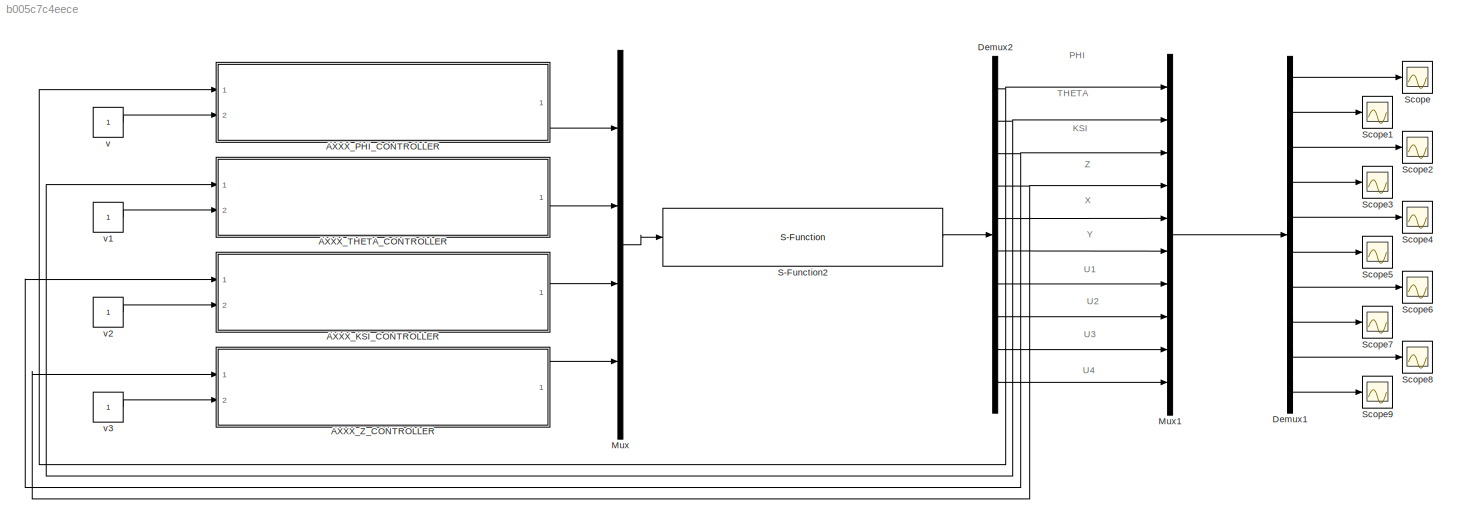
MODEL slx_b005c7c4eece
KIND model
CONFIG AbsTol = auto
CONFIG FixedStep = 1e-4
CONFIG MaxStep = auto
CONFIG MinStep = auto
CONFIG RelTol = 1e-4
CONFIG SampleTimeConstraint = Unconstrained
CONFIG Solver = ode45
CONFIG SolverMode = Auto
CONFIG SolverName = ode45
CONFIG StartTime = 0.0
CONFIG StopTime = 10
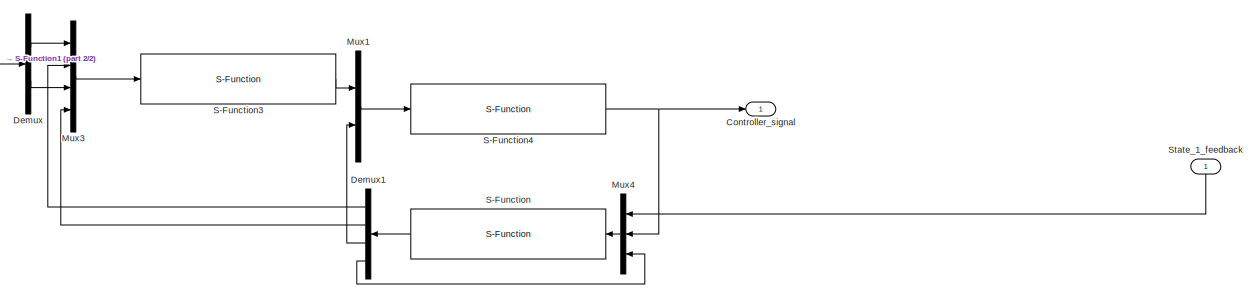
[diagram: AXXX_KSI_CONTROLLER - part 1/2, most of the canvas]
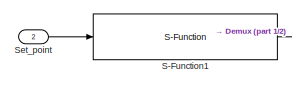
[diagram: AXXX_KSI_CONTROLLER - part 2/2, top left region]
BLOCK [SubSystem] AXXX_KSI_CONTROLLER
  Ports = [2, 1]
  RequestExecContextInheritance = off
BLOCK [Outport] AXXX_KSI_CONTROLLER/Controller_signal
  IconDisplay = Port number
BLOCK [Demux] AXXX_KSI_CONTROLLER/Demux
  DisplayOption = bar
  Outputs = 2
  Ports = [1, 2]
BLOCK [Demux] AXXX_KSI_CONTROLLER/Demux1
  DisplayOption = bar
  Ports = [1, 4]
BLOCK [Mux] AXXX_KSI_CONTROLLER/Mux1
  DisplayOption = bar
  Inputs = 2
  Ports = [2, 1]
BLOCK [Mux] AXXX_KSI_CONTROLLER/Mux3
  DisplayOption = bar
  Ports = [4, 1]
BLOCK [Mux] AXXX_KSI_CONTROLLER/Mux4
  DisplayOption = bar
  Inputs = 3
  Ports = [3, 1]
BLOCK [S-Function] AXXX_KSI_CONTROLLER/S-Function
  FunctionName = eso_q
  Ports = [1, 1]
BLOCK [S-Function] AXXX_KSI_CONTROLLER/S-Function1
  FunctionName = tracking_differentiator_q
  Ports = [1, 1]
BLOCK [S-Function] AXXX_KSI_CONTROLLER/S-Function3
  FunctionName = nlsef_q
  Ports = [1, 1]
BLOCK [S-Function] AXXX_KSI_CONTROLLER/S-Function4
  FunctionName = adrc_q
  Ports = [1, 1]
BLOCK [Inport] AXXX_KSI_CONTROLLER/Set_point
  IconDisplay = Port number
  Port = 2
BLOCK [Inport] AXXX_KSI_CONTROLLER/State_1_feedback
  IconDisplay = Port number
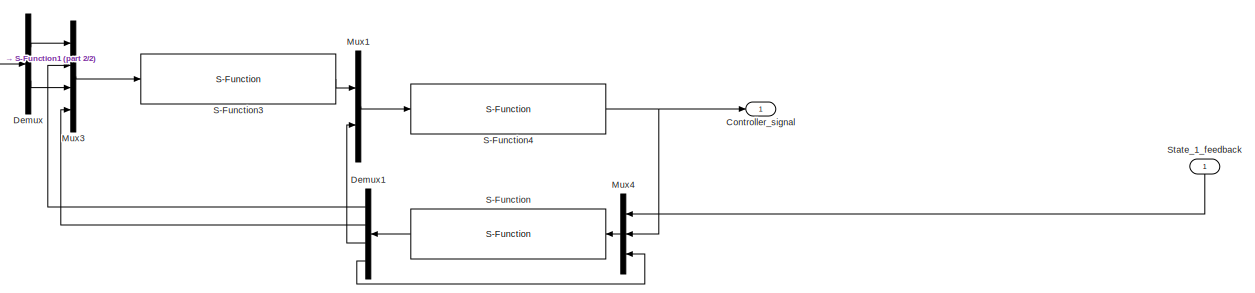
[diagram: AXXX_PHI_CONTROLLER - part 1/2, most of the canvas]
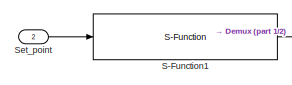
[diagram: AXXX_PHI_CONTROLLER - part 2/2, top left region]
BLOCK [SubSystem] AXXX_PHI_CONTROLLER
  Ports = [2, 1]
  RequestExecContextInheritance = off
BLOCK [Outport] AXXX_PHI_CONTROLLER/Controller_signal
  IconDisplay = Port number
BLOCK [Demux] AXXX_PHI_CONTROLLER/Demux
  DisplayOption = bar
  Outputs = 2
  Ports = [1, 2]
BLOCK [Demux] AXXX_PHI_CONTROLLER/Demux1
  DisplayOption = bar
  Ports = [1, 4]
BLOCK [Mux] AXXX_PHI_CONTROLLER/Mux1
  DisplayOption = bar
  Inputs = 2
  Ports = [2, 1]
BLOCK [Mux] AXXX_PHI_CONTROLLER/Mux3
  DisplayOption = bar
  Ports = [4, 1]
BLOCK [Mux] AXXX_PHI_CONTROLLER/Mux4
  DisplayOption = bar
  Inputs = 3
  Ports = [3, 1]
BLOCK [S-Function] AXXX_PHI_CONTROLLER/S-Function
  FunctionName = eso_q
  Ports = [1, 1]
BLOCK [S-Function] AXXX_PHI_CONTROLLER/S-Function1
  FunctionName = tracking_differentiator_q
  Ports = [1, 1]
BLOCK [S-Function] AXXX_PHI_CONTROLLER/S-Function3
  FunctionName = nlsef_q
  Ports = [1, 1]
BLOCK [S-Function] AXXX_PHI_CONTROLLER/S-Function4
  FunctionName = adrc_q
  Ports = [1, 1]
BLOCK [Inport] AXXX_PHI_CONTROLLER/Set_point
  IconDisplay = Port number
  Port = 2
BLOCK [Inport] AXXX_PHI_CONTROLLER/State_1_feedback
  IconDisplay = Port number
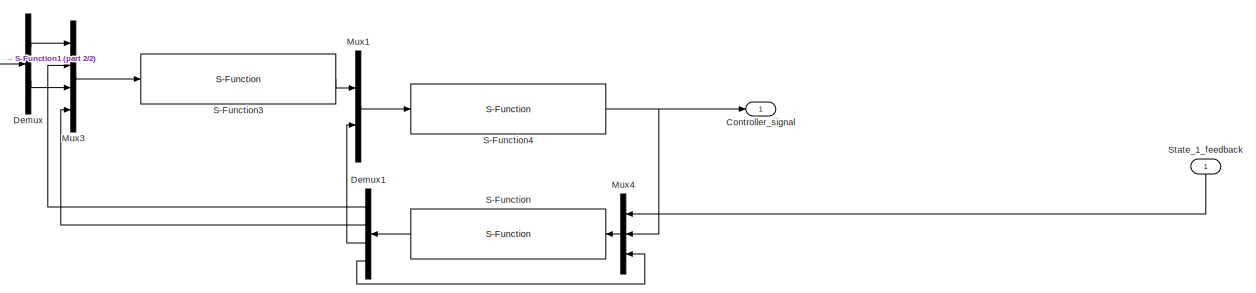
[diagram: AXXX_THETA_CONTROLLER - part 1/2, most of the canvas]
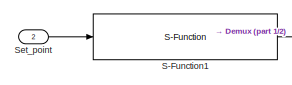
[diagram: AXXX_THETA_CONTROLLER - part 2/2, top left region]
BLOCK [SubSystem] AXXX_THETA_CONTROLLER
  Ports = [2, 1]
  RequestExecContextInheritance = off
BLOCK [Outport] AXXX_THETA_CONTROLLER/Controller_signal
  IconDisplay = Port number
BLOCK [Demux] AXXX_THETA_CONTROLLER/Demux
  DisplayOption = bar
  Outputs = 2
  Ports = [1, 2]
BLOCK [Demux] AXXX_THETA_CONTROLLER/Demux1
  DisplayOption = bar
  Ports = [1, 4]
BLOCK [Mux] AXXX_THETA_CONTROLLER/Mux1
  DisplayOption = bar
  Inputs = 2
  Ports = [2, 1]
BLOCK [Mux] AXXX_THETA_CONTROLLER/Mux3
  DisplayOption = bar
  Ports = [4, 1]
BLOCK [Mux] AXXX_THETA_CONTROLLER/Mux4
  DisplayOption = bar
  Inputs = 3
  Ports = [3, 1]
BLOCK [S-Function] AXXX_THETA_CONTROLLER/S-Function
  FunctionName = eso_q
  Ports = [1, 1]
BLOCK [S-Function] AXXX_THETA_CONTROLLER/S-Function1
  FunctionName = tracking_differentiator_q
  Ports = [1, 1]
BLOCK [S-Function] AXXX_THETA_CONTROLLER/S-Function3
  FunctionName = nlsef_q
  Ports = [1, 1]
BLOCK [S-Function] AXXX_THETA_CONTROLLER/S-Function4
  FunctionName = adrc_q
  Ports = [1, 1]
BLOCK [Inport] AXXX_THETA_CONTROLLER/Set_point
  IconDisplay = Port number
  Port = 2
BLOCK [Inport] AXXX_THETA_CONTROLLER/State_1_feedback
  IconDisplay = Port number
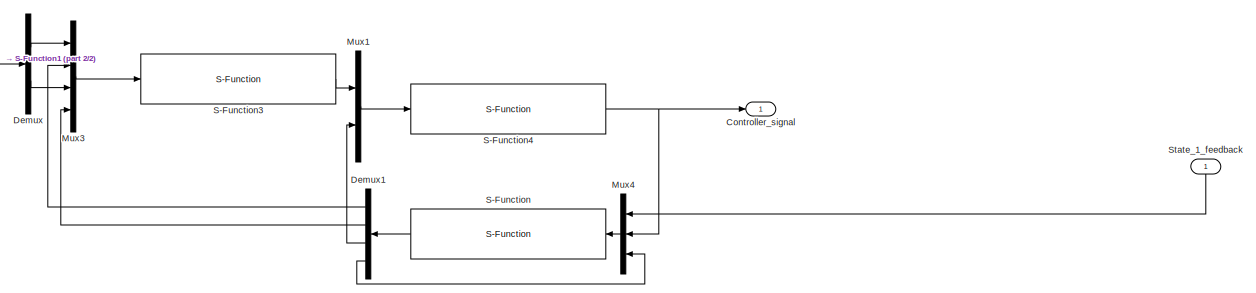
[diagram: AXXX_Z_CONTROLLER - part 1/2, most of the canvas]
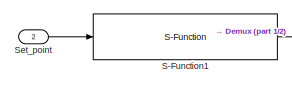
[diagram: AXXX_Z_CONTROLLER - part 2/2, top left region]
BLOCK [SubSystem] AXXX_Z_CONTROLLER
  Ports = [2, 1]
  RequestExecContextInheritance = off
BLOCK [Outport] AXXX_Z_CONTROLLER/Controller_signal
  IconDisplay = Port number
BLOCK [Demux] AXXX_Z_CONTROLLER/Demux
  DisplayOption = bar
  Outputs = 2
  Ports = [1, 2]
BLOCK [Demux] AXXX_Z_CONTROLLER/Demux1
  DisplayOption = bar
  Ports = [1, 4]
BLOCK [Mux] AXXX_Z_CONTROLLER/Mux1
  DisplayOption = bar
  Inputs = 2
  Ports = [2, 1]
BLOCK [Mux] AXXX_Z_CONTROLLER/Mux3
  DisplayOption = bar
  Ports = [4, 1]
BLOCK [Mux] AXXX_Z_CONTROLLER/Mux4
  DisplayOption = bar
  Inputs = 3
  Ports = [3, 1]
BLOCK [S-Function] AXXX_Z_CONTROLLER/S-Function
  FunctionName = eso_q
  Ports = [1, 1]
BLOCK [S-Function] AXXX_Z_CONTROLLER/S-Function1
  FunctionName = tracking_differentiator_q
  Ports = [1, 1]
BLOCK [S-Function] AXXX_Z_CONTROLLER/S-Function3
  FunctionName = nlsef_q
  Ports = [1, 1]
BLOCK [S-Function] AXXX_Z_CONTROLLER/S-Function4
  FunctionName = adrc_q
  Ports = [1, 1]
BLOCK [Inport] AXXX_Z_CONTROLLER/Set_point
  IconDisplay = Port number
  Port = 2
BLOCK [Inport] AXXX_Z_CONTROLLER/State_1_feedback
  IconDisplay = Port number
BLOCK [Demux] Demux1
  DisplayOption = bar
  Outputs = 10
  Ports = [1, 10]
BLOCK [Demux] Demux2
  DisplayOption = bar
  Outputs = 10
  Ports = [1, 10]
BLOCK [Mux] Mux
  DisplayOption = bar
  Ports = [4, 1]
BLOCK [Mux] Mux1
  DisplayOption = bar
  Inputs = 10
  Ports = [10, 1]
BLOCK [S-Function] S-Function2
  FunctionName = quadrotor_adrc_controller_q
  Ports = [1, 1]
BLOCK [Scope] Scope
  Floating = off
  NumInputPorts = 1
  Ports = [1]
BLOCK [Scope] Scope1
  Floating = off
  NumInputPorts = 1
  Ports = [1]
  SaveName = ScopeData1
BLOCK [Scope] Scope2
  Floating = off
  NumInputPorts = 1
  Ports = [1]
  SaveName = ScopeData2
BLOCK [Scope] Scope3
  Floating = off
  NumInputPorts = 1
  Ports = [1]
  SaveName = ScopeData3
BLOCK [Scope] Scope4
  Floating = off
  NumInputPorts = 1
  Ports = [1]
  SaveName = ScopeData4
BLOCK [Scope] Scope5
  Floating = off
  NumInputPorts = 1
  Ports = [1]
  SaveName = ScopeData5
BLOCK [Scope] Scope6
  Floating = off
  NumInputPorts = 1
  Ports = [1]
  SaveName = ScopeData6
BLOCK [Scope] Scope7
  Floating = off
  NumInputPorts = 1
  Ports = [1]
  SaveName = ScopeData7
BLOCK [Scope] Scope8
  Floating = off
  NumInputPorts = 1
  Ports = [1]
  SaveName = ScopeData8
BLOCK [Scope] Scope9
  Floating = off
  NumInputPorts = 1
  Ports = [1]
  SaveName = ScopeData9
BLOCK [Constant] v
BLOCK [Constant] v1
BLOCK [Constant] v2
BLOCK [Constant] v3
ANNOTATION (root): KSI
ANNOTATION (root): PHI
ANNOTATION (root): THETA
ANNOTATION (root): U1
ANNOTATION (root): U2
ANNOTATION (root): U3
ANNOTATION (root): U4
ANNOTATION (root): X
ANNOTATION (root): Y
ANNOTATION (root): Z
LINE AXXX_KSI_CONTROLLER/Demux1:1 -> AXXX_KSI_CONTROLLER/Mux3:2
LINE AXXX_KSI_CONTROLLER/Demux1:2 -> AXXX_KSI_CONTROLLER/Mux3:4
LINE AXXX_KSI_CONTROLLER/Demux1:3 -> AXXX_KSI_CONTROLLER/Mux1:2
LINE AXXX_KSI_CONTROLLER/Demux1:4 -> AXXX_KSI_CONTROLLER/Mux4:3
LINE AXXX_KSI_CONTROLLER/Demux:1 -> AXXX_KSI_CONTROLLER/Mux3:1
LINE AXXX_KSI_CONTROLLER/Demux:2 -> AXXX_KSI_CONTROLLER/Mux3:3
LINE AXXX_KSI_CONTROLLER/Mux1:1 -> AXXX_KSI_CONTROLLER/S-Function4:1
LINE AXXX_KSI_CONTROLLER/Mux3:1 -> AXXX_KSI_CONTROLLER/S-Function3:1
LINE AXXX_KSI_CONTROLLER/Mux4:1 -> AXXX_KSI_CONTROLLER/S-Function:1
LINE AXXX_KSI_CONTROLLER/S-Function1:1 -> AXXX_KSI_CONTROLLER/Demux:1
LINE AXXX_KSI_CONTROLLER/S-Function3:1 -> AXXX_KSI_CONTROLLER/Mux1:1
NET AXXX_KSI_CONTROLLER/S-Function4:1 -> AXXX_KSI_CONTROLLER/Controller_signal:1, AXXX_KSI_CONTROLLER/Mux4:2
LINE AXXX_KSI_CONTROLLER/S-Function:1 -> AXXX_KSI_CONTROLLER/Demux1:1
LINE AXXX_KSI_CONTROLLER/Set_point:1 -> AXXX_KSI_CONTROLLER/S-Function1:1
LINE AXXX_KSI_CONTROLLER/State_1_feedback:1 -> AXXX_KSI_CONTROLLER/Mux4:1
LINE AXXX_KSI_CONTROLLER:1 -> Mux:3
LINE AXXX_PHI_CONTROLLER/Demux1:1 -> AXXX_PHI_CONTROLLER/Mux3:2
LINE AXXX_PHI_CONTROLLER/Demux1:2 -> AXXX_PHI_CONTROLLER/Mux3:4
LINE AXXX_PHI_CONTROLLER/Demux1:3 -> AXXX_PHI_CONTROLLER/Mux1:2
LINE AXXX_PHI_CONTROLLER/Demux1:4 -> AXXX_PHI_CONTROLLER/Mux4:3
LINE AXXX_PHI_CONTROLLER/Demux:1 -> AXXX_PHI_CONTROLLER/Mux3:1
LINE AXXX_PHI_CONTROLLER/Demux:2 -> AXXX_PHI_CONTROLLER/Mux3:3
LINE AXXX_PHI_CONTROLLER/Mux1:1 -> AXXX_PHI_CONTROLLER/S-Function4:1
LINE AXXX_PHI_CONTROLLER/Mux3:1 -> AXXX_PHI_CONTROLLER/S-Function3:1
LINE AXXX_PHI_CONTROLLER/Mux4:1 -> AXXX_PHI_CONTROLLER/S-Function:1
LINE AXXX_PHI_CONTROLLER/S-Function1:1 -> AXXX_PHI_CONTROLLER/Demux:1
LINE AXXX_PHI_CONTROLLER/S-Function3:1 -> AXXX_PHI_CONTROLLER/Mux1:1
NET AXXX_PHI_CONTROLLER/S-Function4:1 -> AXXX_PHI_CONTROLLER/Controller_signal:1, AXXX_PHI_CONTROLLER/Mux4:2
LINE AXXX_PHI_CONTROLLER/S-Function:1 -> AXXX_PHI_CONTROLLER/Demux1:1
LINE AXXX_PHI_CONTROLLER/Set_point:1 -> AXXX_PHI_CONTROLLER/S-Function1:1
LINE AXXX_PHI_CONTROLLER/State_1_feedback:1 -> AXXX_PHI_CONTROLLER/Mux4:1
LINE AXXX_PHI_CONTROLLER:1 -> Mux:1
LINE AXXX_THETA_CONTROLLER/Demux1:1 -> AXXX_THETA_CONTROLLER/Mux3:2
LINE AXXX_THETA_CONTROLLER/Demux1:2 -> AXXX_THETA_CONTROLLER/Mux3:4
LINE AXXX_THETA_CONTROLLER/Demux1:3 -> AXXX_THETA_CONTROLLER/Mux1:2
LINE AXXX_THETA_CONTROLLER/Demux1:4 -> AXXX_THETA_CONTROLLER/Mux4:3
LINE AXXX_THETA_CONTROLLER/Demux:1 -> AXXX_THETA_CONTROLLER/Mux3:1
LINE AXXX_THETA_CONTROLLER/Demux:2 -> AXXX_THETA_CONTROLLER/Mux3:3
LINE AXXX_THETA_CONTROLLER/Mux1:1 -> AXXX_THETA_CONTROLLER/S-Function4:1
LINE AXXX_THETA_CONTROLLER/Mux3:1 -> AXXX_THETA_CONTROLLER/S-Function3:1
LINE AXXX_THETA_CONTROLLER/Mux4:1 -> AXXX_THETA_CONTROLLER/S-Function:1
LINE AXXX_THETA_CONTROLLER/S-Function1:1 -> AXXX_THETA_CONTROLLER/Demux:1
LINE AXXX_THETA_CONTROLLER/S-Function3:1 -> AXXX_THETA_CONTROLLER/Mux1:1
NET AXXX_THETA_CONTROLLER/S-Function4:1 -> AXXX_THETA_CONTROLLER/Controller_signal:1, AXXX_THETA_CONTROLLER/Mux4:2
LINE AXXX_THETA_CONTROLLER/S-Function:1 -> AXXX_THETA_CONTROLLER/Demux1:1
LINE AXXX_THETA_CONTROLLER/Set_point:1 -> AXXX_THETA_CONTROLLER/S-Function1:1
LINE AXXX_THETA_CONTROLLER/State_1_feedback:1 -> AXXX_THETA_CONTROLLER/Mux4:1
LINE AXXX_THETA_CONTROLLER:1 -> Mux:2
LINE AXXX_Z_CONTROLLER/Demux1:1 -> AXXX_Z_CONTROLLER/Mux3:2
LINE AXXX_Z_CONTROLLER/Demux1:2 -> AXXX_Z_CONTROLLER/Mux3:4
LINE AXXX_Z_CONTROLLER/Demux1:3 -> AXXX_Z_CONTROLLER/Mux1:2
LINE AXXX_Z_CONTROLLER/Demux1:4 -> AXXX_Z_CONTROLLER/Mux4:3
LINE AXXX_Z_CONTROLLER/Demux:1 -> AXXX_Z_CONTROLLER/Mux3:1
LINE AXXX_Z_CONTROLLER/Demux:2 -> AXXX_Z_CONTROLLER/Mux3:3
LINE AXXX_Z_CONTROLLER/Mux1:1 -> AXXX_Z_CONTROLLER/S-Function4:1
LINE AXXX_Z_CONTROLLER/Mux3:1 -> AXXX_Z_CONTROLLER/S-Function3:1
LINE AXXX_Z_CONTROLLER/Mux4:1 -> AXXX_Z_CONTROLLER/S-Function:1
LINE AXXX_Z_CONTROLLER/S-Function1:1 -> AXXX_Z_CONTROLLER/Demux:1
LINE AXXX_Z_CONTROLLER/S-Function3:1 -> AXXX_Z_CONTROLLER/Mux1:1
NET AXXX_Z_CONTROLLER/S-Function4:1 -> AXXX_Z_CONTROLLER/Controller_signal:1, AXXX_Z_CONTROLLER/Mux4:2
LINE AXXX_Z_CONTROLLER/S-Function:1 -> AXXX_Z_CONTROLLER/Demux1:1
LINE AXXX_Z_CONTROLLER/Set_point:1 -> AXXX_Z_CONTROLLER/S-Function1:1
LINE AXXX_Z_CONTROLLER/State_1_feedback:1 -> AXXX_Z_CONTROLLER/Mux4:1
LINE AXXX_Z_CONTROLLER:1 -> Mux:4
LINE Demux1:1 -> Scope:1
LINE Demux1:10 -> Scope9:1
LINE Demux1:2 -> Scope1:1
LINE Demux1:3 -> Scope2:1
LINE Demux1:4 -> Scope3:1
LINE Demux1:5 -> Scope4:1
LINE Demux1:6 -> Scope5:1
LINE Demux1:7 -> Scope6:1
LINE Demux1:8 -> Scope7:1
LINE Demux1:9 -> Scope8:1
NET Demux2:1 -> AXXX_PHI_CONTROLLER:1, Mux1:1
LINE Demux2:10 -> Mux1:10
NET Demux2:2 -> AXXX_THETA_CONTROLLER:1, Mux1:2
NET Demux2:3 -> AXXX_KSI_CONTROLLER:1, Mux1:3
NET Demux2:4 -> AXXX_Z_CONTROLLER:1, Mux1:4
LINE Demux2:5 -> Mux1:5
LINE Demux2:6 -> Mux1:6
LINE Demux2:7 -> Mux1:7
LINE Demux2:8 -> Mux1:8
LINE Demux2:9 -> Mux1:9
LINE Mux1:1 -> Demux1:1
LINE Mux:1 -> S-Function2:1
LINE S-Function2:1 -> Demux2:1
LINE v1:1 -> AXXX_THETA_CONTROLLER:2
LINE v2:1 -> AXXX_KSI_CONTROLLER:2
LINE v3:1 -> AXXX_Z_CONTROLLER:2
LINE v:1 -> AXXX_PHI_CONTROLLER:2
note: NET lines group one-source signal fan-out (src -> all destinations, sorted); 1:1 wires keep LINE
